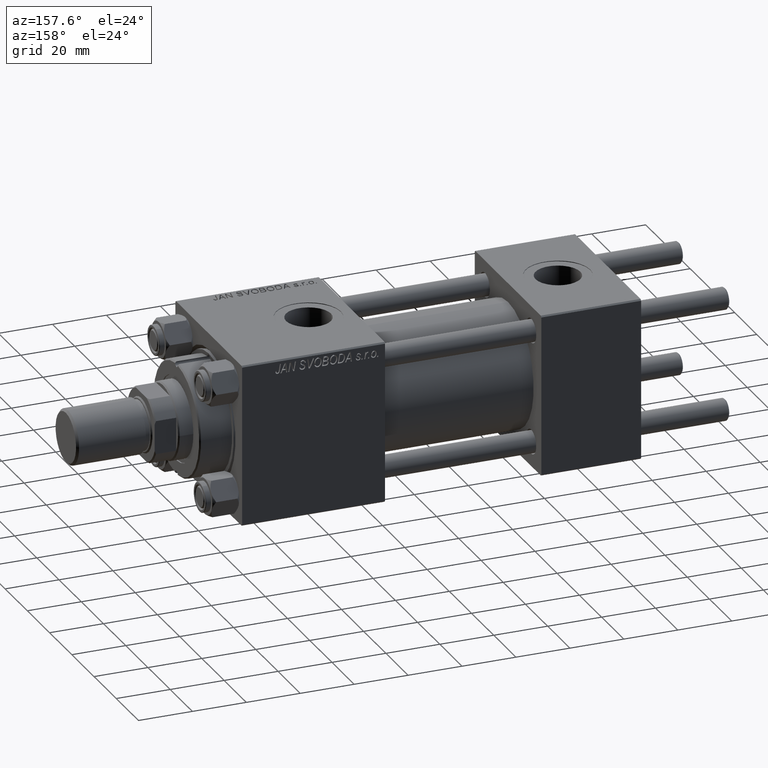
[diagram: clean part render]
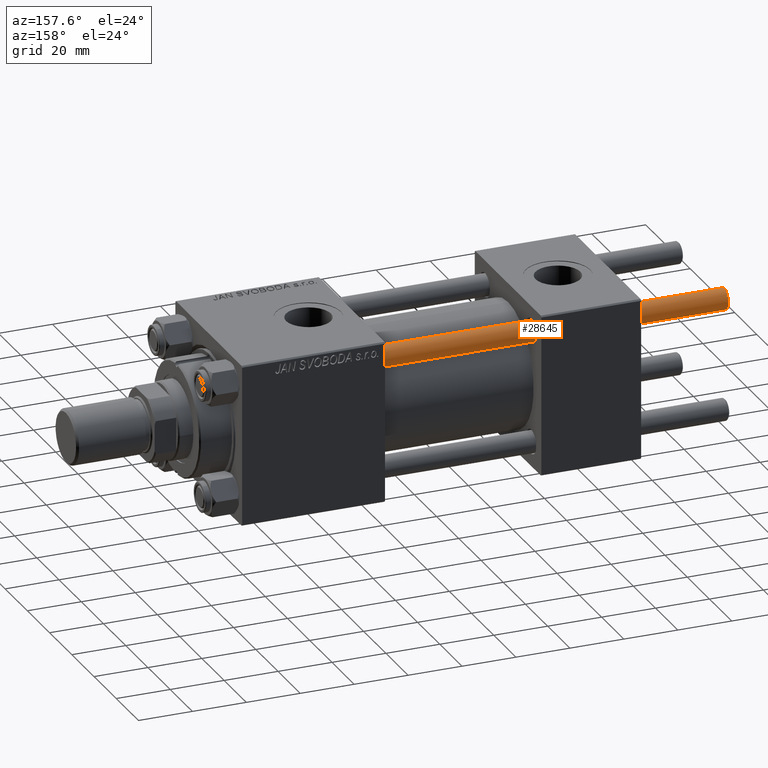
[diagram: same view with one face highlighted and labeled with its STEP entity id]
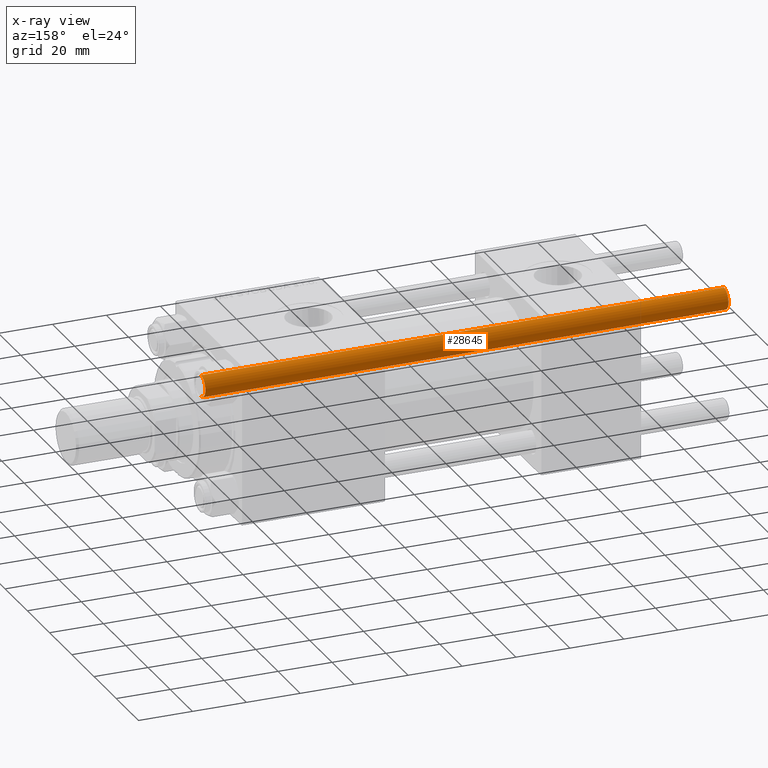
[diagram: x-ray of the same camera — body ghosted, the highlighted face saturated]
A machine part, auxiliary view. The second image highlights one B-rep face of the part: STEP entity #28645.
The next image is the same camera in x-ray: the body ghosted, the highlighted face saturated — about 0% of this face is hidden behind the body in this view.
In plain terms, the highlighted cylindrical surface (edge-blend (fillet) strip) has radius 4 mm, axis along (-1, -0, -0).
Its self-contained STEP definition (entity closure, byte-faithful):
#370 = AXIS2_PLACEMENT_3D ( 'NONE', #36530, #5322, #17088 ) ;
#2378 = DIRECTION ( 'NONE',  ( -0.000000000000000000, -0.000000000000000000, 1.000000000000000000 ) ) ;
#5322 = DIRECTION ( 'NONE',  ( 0.000000000000000000, 0.000000000000000000, -1.000000000000000000 ) ) ;
#9952 = CARTESIAN_POINT ( 'NONE',  ( 4.000000000000000000, 4.898587196589412829E-16, 195.0000000000000000 ) ) ;
#10347 = DIRECTION ( 'NONE',  ( -0.000000000000000000, -0.000000000000000000, -1.000000000000000000 ) ) ;
#10876 = VERTEX_POINT ( 'NONE', #32977 ) ;
#13429 = CIRCLE ( 'NONE', #40392, 4.000000000000000000 ) ;
#14531 = CARTESIAN_POINT ( 'NONE',  ( -4.000000000000000000, 0.000000000000000000, 195.0000000000000000 ) ) ;
#16021 = VECTOR ( 'NONE', #18378, 1000.000000000000000 ) ;
#16728 = VERTEX_POINT ( 'NONE', #37144 ) ;
#17088 = DIRECTION ( 'NONE',  ( 1.000000000000000000, 0.000000000000000000, 0.000000000000000000 ) ) ;
#18070 = EDGE_LOOP ( 'NONE', ( #43012, #26958, #31052, #48076 ) ) ;
#18226 = DIRECTION ( 'NONE',  ( 1.000000000000000000, 0.000000000000000000, 0.000000000000000000 ) ) ;
#18273 = CARTESIAN_POINT ( 'NONE',  ( 0.000000000000000000, 0.000000000000000000, 195.0000000000000000 ) ) ;
#18370 = LINE ( 'NONE', #9952, #22025 ) ;
#18378 = DIRECTION ( 'NONE',  ( -0.000000000000000000, -0.000000000000000000, -1.000000000000000000 ) ) ;
#18934 = EDGE_CURVE ( 'NONE', #37203, #36757, #18370, .T. ) ;
#20676 = AXIS2_PLACEMENT_3D ( 'NONE', #18273, #10347, #26431 ) ;
#22025 = VECTOR ( 'NONE', #25551, 1000.000000000000000 ) ;
#22773 = CARTESIAN_POINT ( 'NONE',  ( 4.000000000000000000, 4.898587196589412829E-16, 194.5000000000000568 ) ) ;
#25551 = DIRECTION ( 'NONE',  ( -0.000000000000000000, -0.000000000000000000, -1.000000000000000000 ) ) ;
#26431 = DIRECTION ( 'NONE',  ( -1.000000000000000000, 0.000000000000000000, 0.000000000000000000 ) ) ;
#26688 = CYLINDRICAL_SURFACE ( 'NONE', #20676, 4.000000000000000000 ) ;
#26958 = ORIENTED_EDGE ( 'NONE', *, *, #18934, .T. ) ;
#27291 = LINE ( 'NONE', #14531, #16021 ) ;
#28645 = ADVANCED_FACE ( 'NONE', ( #33634 ), #26688, .T. ) ;
#31052 = ORIENTED_EDGE ( 'NONE', *, *, #39412, .T. ) ;
#31514 = EDGE_CURVE ( 'NONE', #16728, #37203, #44502, .T. ) ;
#32274 = CARTESIAN_POINT ( 'NONE',  ( 4.000000000000000000, 4.898587196589412829E-16, 0.5000000000000004441 ) ) ;
#32977 = CARTESIAN_POINT ( 'NONE',  ( -4.000000000000000000, 0.000000000000000000, 0.5000000000000004441 ) ) ;
#33634 = FACE_OUTER_BOUND ( 'NONE', #18070, .T. ) ;
#36530 = CARTESIAN_POINT ( 'NONE',  ( 0.000000000000000000, 0.000000000000000000, 194.5000000000000568 ) ) ;
#36757 = VERTEX_POINT ( 'NONE', #32274 ) ;
#37144 = CARTESIAN_POINT ( 'NONE',  ( -4.000000000000000000, 0.000000000000000000, 194.5000000000000568 ) ) ;
#37203 = VERTEX_POINT ( 'NONE', #22773 ) ;
#39412 = EDGE_CURVE ( 'NONE', #36757, #10876, #13429, .T. ) ;
#40392 = AXIS2_PLACEMENT_3D ( 'NONE', #48654, #2378, #18226 ) ;
#43012 = ORIENTED_EDGE ( 'NONE', *, *, #31514, .T. ) ;
#43072 = EDGE_CURVE ( 'NONE', #16728, #10876, #27291, .T. ) ;
#44502 = CIRCLE ( 'NONE', #370, 4.000000000000000000 ) ;
#48076 = ORIENTED_EDGE ( 'NONE', *, *, #43072, .F. ) ;
#48654 = CARTESIAN_POINT ( 'NONE',  ( 0.000000000000000000, 0.000000000000000000, 0.5000000000000004441 ) ) ;